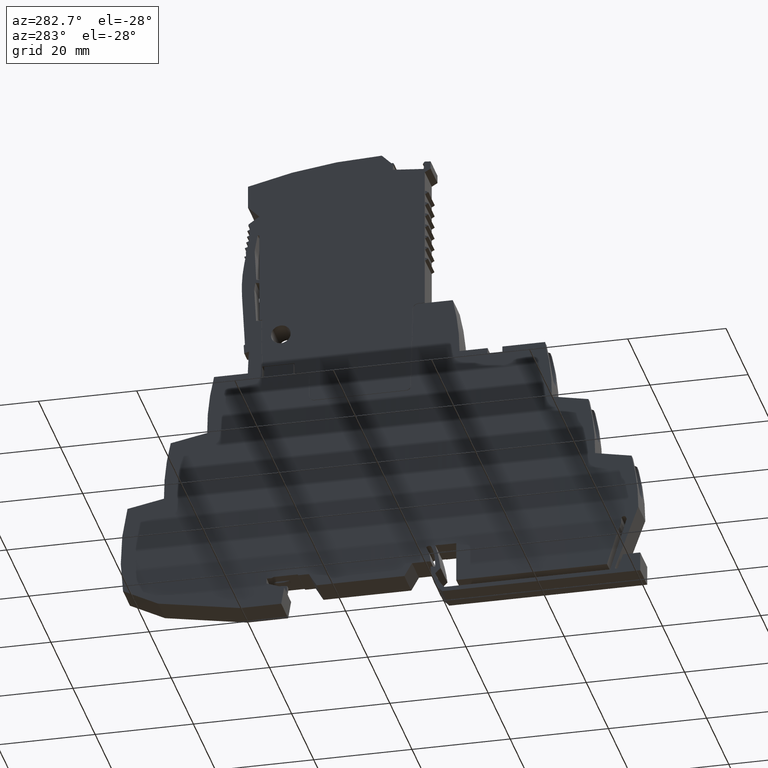
[diagram: clean part render]
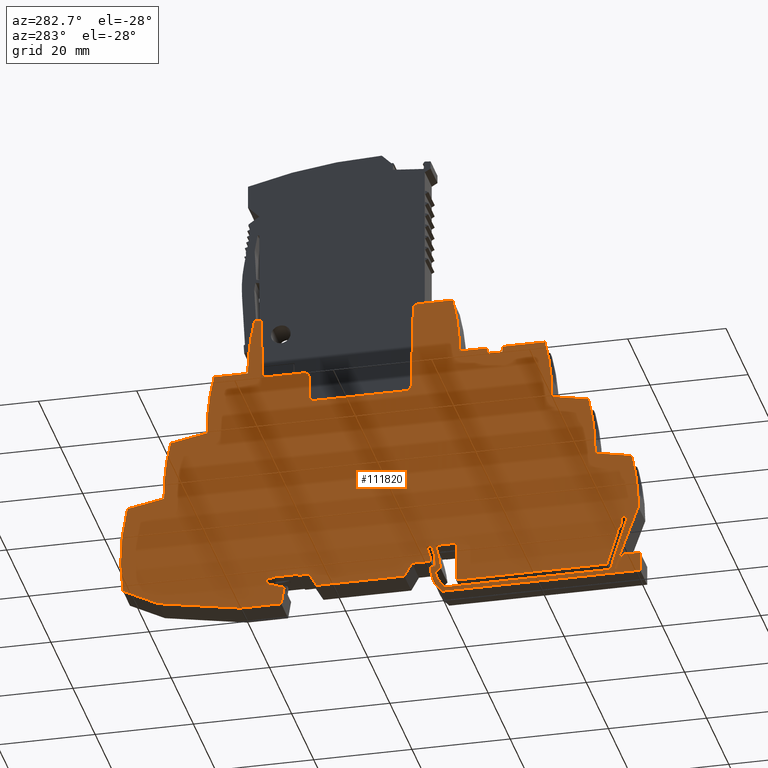
[diagram: same view with one face highlighted and labeled with its STEP entity id]
A machine part, auxiliary view. The second image highlights one B-rep face of the part: STEP entity #111820.
In plain terms, the highlighted planar face has unit normal (-1, 0, 0).
Its self-contained STEP definition (entity closure, byte-faithful):
#15380=CARTESIAN_POINT('',(0.,58.2109707944721,6.42371764497642E-8));
#15390=DIRECTION('',(0.999999999999991,1.31857899599019E-7,
1.49766621791332E-16));
#15400=VECTOR('',#15390,1.);
#15410=LINE('',#15380,#15400);
#15420=CARTESIAN_POINT('',(-37.9106962853079,58.2109657956473,
6.42371707720073E-8));
#15430=VERTEX_POINT('',#15420);
#15440=CARTESIAN_POINT('',(-30.8831240063783,58.2109667222882,
6.42371718245031E-8));
#15450=VERTEX_POINT('',#15440);
#15460=EDGE_CURVE('',#15430,#15450,#15410,.T.);
#16520=CARTESIAN_POINT('',(-9.72105660347197,38.9430393421183,
4.29745596128723E-8));
#16530=VERTEX_POINT('',#16520);
#16610=CARTESIAN_POINT('',(-28.4302616897223,38.9430393421183,
4.29745595332025E-8));
#16620=VERTEX_POINT('',#16610);
#16650=CARTESIAN_POINT('',(-28.4302616897223,38.9430393421183,
4.29745595332025E-8));
#16660=DIRECTION('',(1.,3.79782429282532E-16,4.25831819842337E-18));
#16670=VECTOR('',#16660,1.);
#16680=LINE('',#16650,#16670);
#16690=EDGE_CURVE('',#16620,#16530,#16680,.T.);
#16900=CARTESIAN_POINT('',(-8.72120890831556,39.9255869356814,
4.40588240434394E-8));
#16910=VERTEX_POINT('',#16900);
#16960=CARTESIAN_POINT('',(-9.72105660347197,39.9430393421184,
4.40780831980623E-8));
#16970=DIRECTION('',(-4.25831775426141E-18,-1.25334406386425E-20,1.));
#16980=DIRECTION('',(-6.48370246381091E-13,-1.,-1.25334406414035E-20));
#16990=AXIS2_PLACEMENT_3D('',#16960,#16970,#16980);
#17000=CIRCLE('',#16990,1.);
#17010=EDGE_CURVE('',#16530,#16910,#17000,.T.);
#17220=CARTESIAN_POINT('',(-8.64282693639703,44.4160870994388,
4.89949377584163E-8));
#17230=VERTEX_POINT('',#17220);
#17280=CARTESIAN_POINT('',(-8.72120890831555,39.9255869356813,
4.40588240601984E-8));
#17290=DIRECTION('',(0.0174524064372863,0.999847695156391,
1.10335551327726E-9));
#17300=VECTOR('',#17290,1.);
#17310=LINE('',#17280,#17300);
#17320=EDGE_CURVE('',#16910,#17230,#17310,.T.);
#17530=CARTESIAN_POINT('',(-7.64297914195613,45.3986346930014,
4.89949377626863E-8));
#17540=VERTEX_POINT('',#17530);
#17590=CARTESIAN_POINT('',(-7.64297924124064,44.3986346930014,
4.89949377626737E-8));
#17600=DIRECTION('',(4.25831958431897E-18,1.25329951073237E-20,-1.));
#17610=DIRECTION('',(-0.999847695156386,0.0174524064375632,
-4.25745229069613E-18));
#17620=AXIS2_PLACEMENT_3D('',#17590,#17600,#17610);
#17630=CIRCLE('',#17620,1.);
#17640=EDGE_CURVE('',#17230,#17540,#17630,.T.);
#18420=CARTESIAN_POINT('',(-7.64297914195562,45.3986346930015,
5.0098461347864E-8));
#18430=DIRECTION('',(0.999999999999995,-9.92840012002268E-8,
-1.05303920145555E-16));
#18440=VECTOR('',#18430,1.);
#18450=LINE('',#18420,#18440);
#18460=CARTESIAN_POINT('',(0.90275153054791,45.398633844547,
5.00984604479648E-8));
#18470=VERTEX_POINT('',#18460);
#18480=EDGE_CURVE('',#17540,#18470,#18450,.T.);
#18770=CARTESIAN_POINT('',(1.01456435035116,58.2109681582335,
6.42371735564165E-8));
#18780=VERTEX_POINT('',#18770);
#19070=CARTESIAN_POINT('',(0.902751530547924,45.3986338445472,
5.0098460447965E-8));
#19080=DIRECTION('',(0.00872663477859456,0.999961922197761,
1.10348156547432E-9));
#19090=VECTOR('',#19080,1.);
#19100=LINE('',#19070,#19090);
#19110=EDGE_CURVE('',#18470,#18780,#19100,.T.);
#19430=CARTESIAN_POINT('',(1.01456435035116,58.2109681582333,
6.42371735449329E-8));
#19440=DIRECTION('',(0.999999999999999,4.96421983912843E-8,
5.9039659598292E-17));
#19450=VECTOR('',#19440,1.);
#19460=LINE('',#19430,#19450);
#19470=CARTESIAN_POINT('',(2.45069827905098,58.2109682295262,
6.42371736297218E-8));
#19480=VERTEX_POINT('',#19470);
#19490=EDGE_CURVE('',#18780,#19480,#19460,.T.);
#37660=CARTESIAN_POINT('',(-29.8834665417039,57.2371436681465,
6.3133648240867E-8));
#37670=VERTEX_POINT('',#37660);
#37720=CARTESIAN_POINT('',(-30.8831238666795,57.2109667198385,
6.31336482366096E-8));
#37730=DIRECTION('',(4.25831775426126E-18,1.25340689118339E-20,-1.));
#37740=DIRECTION('',(-1.47539584105514E-7,0.999999999999989,
1.25334406414033E-20));
#37750=AXIS2_PLACEMENT_3D('',#37720,#37730,#37740);
#37760=CIRCLE('',#37750,1.00000000000001);
#37770=EDGE_CURVE('',#15450,#37670,#37760,.T.);
#38630=CARTESIAN_POINT('',(-29.4299190146979,39.9168623938107,
4.40780831141354E-8));
#38640=VERTEX_POINT('',#38630);
#38690=CARTESIAN_POINT('',(-29.883466541704,57.2371436681467,
6.3162535120713E-8));
#38700=DIRECTION('',(0.0261769483078745,-0.999657324975557,
-1.103145435107E-9));
#38710=VECTOR('',#38700,1.);
#38720=LINE('',#38690,#38710);
#38730=EDGE_CURVE('',#37670,#38640,#38720,.T.);
#39170=CARTESIAN_POINT('',(-28.4302616897223,39.9430393421183,
4.40780831183924E-8));
#39180=DIRECTION('',(-4.25831873530303E-18,-1.25330527405761E-20,1.));
#39190=DIRECTION('',(-0.999657324975572,-0.0261769483073024,
-4.25718759290011E-18));
#39200=AXIS2_PLACEMENT_3D('',#39170,#39180,#39190);
#39210=CIRCLE('',#39200,1.);
#39220=EDGE_CURVE('',#38640,#16620,#39210,.T.);
#45720=CARTESIAN_POINT('',(3.82923846379281,46.6000000064736,
5.14241963545619E-8));
#45730=VERTEX_POINT('',#45720);
#45760=CARTESIAN_POINT('',(0.,46.6000000064736,5.14241963382558E-8));
#45770=DIRECTION('',(1.,-1.11022302462515E-16,4.25831734740234E-18));
#45780=VECTOR('',#45770,1.);
#45790=LINE('',#45760,#45780);
#45800=CARTESIAN_POINT('',(10.6909786444634,46.6000000064736,
5.14241963837814E-8));
#45810=VERTEX_POINT('',#45800);
#45820=EDGE_CURVE('',#45730,#45810,#45790,.T.);
#46880=CARTESIAN_POINT('',(-46.1707374788646,46.5509517270129,
5.13700699755759E-8));
#46890=DIRECTION('',(1.26133036133013E-9,-1.10352358517744E-9,-1.));
#46900=DIRECTION('',(0.972428715158313,0.233200330050265,
9.69211798376798E-10));
#46910=AXIS2_PLACEMENT_3D('',#46880,#46890,#46900);
#46920=CIRCLE('',#46910,50.);
#46930=EDGE_CURVE('',#19480,#45730,#46920,.T.);
#74370=CARTESIAN_POINT('',(12.092036618478,34.1702546828145,
3.77076791214485E-8));
#74380=VERTEX_POINT('',#74370);
#75410=CARTESIAN_POINT('',(-37.9036280791465,34.828670541299,
3.84342564829879E-8));
#75420=DIRECTION('',(4.25831752161686E-18,1.10352358519E-9,-1.));
#75430=DIRECTION('',(1.,0.,4.25831752161686E-18));
#75440=AXIS2_PLACEMENT_3D('',#75410,#75420,#75430);
#75450=CIRCLE('',#75440,50.);
#75460=EDGE_CURVE('',#45810,#74380,#75450,.T.);
#84090=CARTESIAN_POINT('',(0.,36.5207084988188,4.03014604375535E-8));
#84100=DIRECTION('',(0.981627183447664,-0.190808995376544,
-2.10562234315148E-10));
#84110=VECTOR('',#84100,1.);
#84120=LINE('',#84090,#84110);
#84130=CARTESIAN_POINT('',(19.5275810209679,32.7249312632513,
3.6112730817132E-8));
#84140=VERTEX_POINT('',#84130);
#84150=EDGE_CURVE('',#74380,#84140,#84120,.T.);
#85520=CARTESIAN_POINT('',(20.8928727810394,20.4195573763437,
2.25334605141622E-8));
#85530=VERTEX_POINT('',#85520);
#86560=CARTESIAN_POINT('',(-29.1024839507505,21.100956863484,
2.32854007062618E-8));
#86570=DIRECTION('',(4.25831752161686E-18,1.10352358519E-9,-1.));
#86580=DIRECTION('',(1.,0.,4.25831752161686E-18));
#86590=AXIS2_PLACEMENT_3D('',#86560,#86570,#86580);
#86600=CIRCLE('',#86590,50.);
#86610=EDGE_CURVE('',#84140,#85530,#86600,.T.);
#95550=CARTESIAN_POINT('',(0.,24.4807204462972,2.701504965619E-8));
#95560=DIRECTION('',(0.981627183447664,-0.190808995376544,
-2.10562234315148E-10));
#95570=VECTOR('',#95560,1.);
#95580=LINE('',#95550,#95570);
#95590=CARTESIAN_POINT('',(28.3248298485418,18.9749312640643,
2.09392812177507E-8));
#95600=VERTEX_POINT('',#95590);
#95610=EDGE_CURVE('',#85530,#95600,#95580,.T.);
#97020=CARTESIAN_POINT('',(29.2351400995933,0.586991843612006,
6.4775697356505E-10));
#97030=VERTEX_POINT('',#97020);
#98060=CARTESIAN_POINT('',(-20.3052351230874,7.3509568639236,
8.11195144784589E-9));
#98070=DIRECTION('',(4.25831752161686E-18,1.10352358519E-9,-1.));
#98080=DIRECTION('',(1.,0.,4.25831752161686E-18));
#98090=AXIS2_PLACEMENT_3D('',#98060,#98070,#98080);
#98100=CIRCLE('',#98090,50.);
#98110=EDGE_CURVE('',#95600,#97030,#98100,.T.);
#105320=CARTESIAN_POINT('',(22.0928458790932,-3.05218871222587,
-3.36816469060971E-9));
#105330=VERTEX_POINT('',#105320);
#105380=CARTESIAN_POINT('',(0.,-14.3090555765944,-1.57903830493084E-8));
#105390=DIRECTION('',(-0.891006530106836,-0.453990488123899,
-5.00989222329551E-10));
#105400=VECTOR('',#105390,1.);
#105410=LINE('',#105380,#105400);
#105420=EDGE_CURVE('',#97030,#105330,#105410,.T.);
#105940=CARTESIAN_POINT('',(5.37497732927698,-5.99999999749596,
-6.62114422423036E-9));
#105950=VERTEX_POINT('',#105940);
#106000=CARTESIAN_POINT('',(0.,-6.94775352134381,-7.66701261363176E-9));
#106010=DIRECTION('',(-0.984807753012208,-0.17364817766693,
-1.91624868750573E-10));
#106020=VECTOR('',#106010,1.);
#106030=LINE('',#106000,#106020);
#106040=EDGE_CURVE('',#105330,#105950,#106030,.T.);
#106460=CARTESIAN_POINT('',(-2.98117450052271,-5.99999999749596,
-6.62114425981351E-9));
#106470=VERTEX_POINT('',#106460);
#106520=CARTESIAN_POINT('',(0.,-5.99999999749596,-6.62114424711872E-9));
#106530=DIRECTION('',(-1.,-2.77555756156289E-16,-4.25831777620737E-18));
#106540=VECTOR('',#106530,1.);
#106550=LINE('',#106520,#106540);
#106560=EDGE_CURVE('',#105950,#106470,#106550,.T.);
#107150=CARTESIAN_POINT('',(-55.9378215936621,-6.54999889871898,
-7.22808124464791E-9));
#107160=DIRECTION('',(4.25831746991807E-18,1.10352358519E-9,-1.));
#107170=DIRECTION('',(0.207911690818067,-0.97814760073374,
-1.07940894632134E-9));
#107180=AXIS2_PLACEMENT_3D('',#107150,#107160,#107170);
#107190=PLANE('',#107180);
#107200=CARTESIAN_POINT('',(-38.6044126144672,0.,-2.90313183219228E-15))
;
#107210=DIRECTION('',(-5.07417828893286E-8,0.999999999999999,
1.10352358519E-9));
#107220=VECTOR('',#107210,1.);
#107230=LINE('',#107200,#107220);
#107240=CARTESIAN_POINT('',(-38.6044123696365,-4.8250318259205,
-5.32453932232747E-9));
#107250=VERTEX_POINT('',#107240);
#107260=CARTESIAN_POINT('',(-38.6044127892712,3.44497200500275,
3.80160495470799E-9));
#107270=VERTEX_POINT('',#107260);
#107280=EDGE_CURVE('',#107250,#107270,#107230,.T.);
#107290=ORIENTED_EDGE('',*,*,#107280,.F.);
#107300=CARTESIAN_POINT('',(0.,3.44497588026097,3.80160939553667E-9));
#107310=DIRECTION('',(0.999999999999995,1.00383815346271E-7,
1.15034214460182E-16));
#107320=VECTOR('',#107310,1.);
#107330=LINE('',#107300,#107320);
#107340=CARTESIAN_POINT('',(-35.1751514716323,3.44497234924504,
3.80160535704872E-9));
#107350=VERTEX_POINT('',#107340);
#107360=EDGE_CURVE('',#107270,#107350,#107330,.T.);
#107370=ORIENTED_EDGE('',*,*,#107360,.F.);
#107380=CARTESIAN_POINT('',(-35.0441482321315,3.29384938196245,
3.63483759108797E-9));
#107390=DIRECTION('',(0.,-1.10352363349846E-9,1.));
#107400=DIRECTION('',(-9.92840029509786E-8,-0.999999999999995,
-1.10352363349845E-9));
#107410=AXIS2_PLACEMENT_3D('',#107380,#107390,#107400);
#107420=CIRCLE('',#107410,0.2);
#107430=CARTESIAN_POINT('',(-35.0441482522088,3.49384938196244,
3.85554230812635E-9));
#107440=VERTEX_POINT('',#107430);
#107450=EDGE_CURVE('',#107440,#107350,#107420,.T.);
#107460=ORIENTED_EDGE('',*,*,#107450,.T.);
#107470=CARTESIAN_POINT('',(0.,3.49385289982775,3.85554633940241E-9));
#107480=DIRECTION('',(0.999999999999995,1.00383815512805E-7,
1.15034214460182E-16));
#107490=VECTOR('',#107480,1.);
#107500=LINE('',#107470,#107490);
#107510=CARTESIAN_POINT('',(-34.3420131750122,3.49384945244544,
3.8555423888959E-9));
#107520=VERTEX_POINT('',#107510);
#107530=EDGE_CURVE('',#107440,#107520,#107500,.T.);
#107540=ORIENTED_EDGE('',*,*,#107530,.F.);
#107550=CARTESIAN_POINT('',(-5.80807240252724,-5.09999857927684,
-5.62797148014208E-9));
#107560=DIRECTION('',(0.,-1.10352363349846E-9,1.));
#107570=DIRECTION('',(-9.92840029509786E-8,-0.999999999999995,
-1.10352363349845E-9));
#107580=AXIS2_PLACEMENT_3D('',#107550,#107560,#107570);
#107590=CIRCLE('',#107580,29.8);
#107600=CARTESIAN_POINT('',(-35.4168709011156,-1.7296793851928,
-1.90874406389204E-9));
#107610=VERTEX_POINT('',#107600);
#107620=EDGE_CURVE('',#107520,#107610,#107590,.T.);
#107630=ORIENTED_EDGE('',*,*,#107620,.F.);
#107640=CARTESIAN_POINT('',(0.,-37.1465466920785,-4.09920931218121E-8));
#107650=DIRECTION('',(0.707106817066403,-0.707106745306691,
-7.80308984094091E-10));
#107660=VECTOR('',#107650,1.);
#107670=LINE('',#107640,#107660);
#107680=CARTESIAN_POINT('',(-34.3522554113693,-2.79429476689808,
-3.08357226693668E-9));
#107690=VERTEX_POINT('',#107680);
#107700=EDGE_CURVE('',#107610,#107690,#107670,.T.);
#107710=ORIENTED_EDGE('',*,*,#107700,.F.);
#107720=CARTESIAN_POINT('',(-42.5080726410136,-0.400000441500282,
-4.4141284103683E-10));
#107730=DIRECTION('',(0.,-1.10352363349846E-9,1.));
#107740=DIRECTION('',(-9.92840029509786E-8,-0.999999999999995,
-1.10352363349845E-9));
#107750=AXIS2_PLACEMENT_3D('',#107720,#107730,#107740);
#107760=CIRCLE('',#107750,8.5);
#107770=CARTESIAN_POINT('',(-36.2025220522756,-6.1000032285931,
-6.73150062760081E-9));
#107780=VERTEX_POINT('',#107770);
#107790=EDGE_CURVE('',#107780,#107690,#107760,.T.);
#107800=ORIENTED_EDGE('',*,*,#107790,.T.);
#107810=CARTESIAN_POINT('',(0.,-6.10000139161245,-6.73149814407815E-9));
#107820=DIRECTION('',(-0.999999999999999,-5.07417829448398E-8,
-6.02530765892814E-17));
#107830=VECTOR('',#107820,1.);
#107840=LINE('',#107810,#107830);
#107850=CARTESIAN_POINT('',(-69.9597117409604,-6.10000494149282,
-6.73150244031202E-9));
#107860=VERTEX_POINT('',#107850);
#107870=EDGE_CURVE('',#107780,#107860,#107840,.T.);
#107880=ORIENTED_EDGE('',*,*,#107870,.F.);
#107890=CARTESIAN_POINT('',(-71.8246714117973,0.,-3.04459424058415E-15))
;
#107900=DIRECTION('',(-0.292371848547817,0.956304711991284,
1.05530481575578E-9));
#107910=VECTOR('',#107900,1.);
#107920=LINE('',#107890,#107910);
#107930=CARTESIAN_POINT('',(-73.2832765906462,4.77088000228553,
5.2647756171371E-9));
#107940=VERTEX_POINT('',#107930);
#107950=EDGE_CURVE('',#107860,#107940,#107920,.T.);
#107960=ORIENTED_EDGE('',*,*,#107950,.F.);
#107970=CARTESIAN_POINT('',(-72.8529394702501,4.90244733413206,
5.40996320939364E-9));
#107980=DIRECTION('',(0.,-1.10352363349846E-9,1.));
#107990=DIRECTION('',(-9.92840029509786E-8,-0.999999999999995,
-1.10352363349845E-9));
#108000=AXIS2_PLACEMENT_3D('',#107970,#107980,#107990);
#108010=CIRCLE('',#108000,0.45);
#108020=CARTESIAN_POINT('',(-73.2033943907531,5.18472618331351,
5.72146458401679E-9));
#108030=VERTEX_POINT('',#108020);
#108040=EDGE_CURVE('',#108030,#107940,#108010,.T.);
#108050=ORIENTED_EDGE('',*,*,#108040,.T.);
#108060=CARTESIAN_POINT('',(-72.7212094578097,5.05244734735562,
5.5754917623256E-9));
#108070=DIRECTION('',(0.,-1.10352363349846E-9,1.));
#108080=DIRECTION('',(-9.92840029509786E-8,-0.999999999999995,
-1.10352363349845E-9));
#108090=AXIS2_PLACEMENT_3D('',#108060,#108070,#108080);
#108100=CIRCLE('',#108090,0.5);
#108110=CARTESIAN_POINT('',(-72.2212094578097,5.05244739754763,
5.57549181771366E-9));
#108120=VERTEX_POINT('',#108110);
#108130=EDGE_CURVE('',#108120,#108030,#108100,.T.);
#108140=ORIENTED_EDGE('',*,*,#108130,.T.);
#108150=CARTESIAN_POINT('',(-72.221208950626,0.,-3.04628282331323E-15));
#108160=DIRECTION('',(1.00383786647006E-7,-0.999999999999995,
-1.10352358518999E-9));
#108170=VECTOR('',#108160,1.);
#108180=LINE('',#108150,#108170);
#108190=CARTESIAN_POINT('',(-72.2212093726668,4.20427319590983,
4.63951163979971E-9));
#108200=VERTEX_POINT('',#108190);
#108210=EDGE_CURVE('',#108120,#108200,#108180,.T.);
#108220=ORIENTED_EDGE('',*,*,#108210,.F.);
#108230=CARTESIAN_POINT('',(-70.9358333719549,0.,-3.04080928603116E-15))
;
#108240=DIRECTION('',(0.292371848563715,-0.956304711986423,
-1.05530481575578E-9));
#108250=VECTOR('',#108240,1.);
#108260=LINE('',#108230,#108250);
#108270=CARTESIAN_POINT('',(-71.9172872789946,3.21018935479002,
3.54251666356495E-9));
#108280=VERTEX_POINT('',#108270);
#108290=EDGE_CURVE('',#108200,#108280,#108260,.T.);
#108300=ORIENTED_EDGE('',*,*,#108290,.F.);
#108310=CARTESIAN_POINT('',(-70.063883161189,0.,-3.03709624521576E-15));
#108320=DIRECTION('',(0.500000086934894,-0.866025353592549,
-9.55679424485822E-10));
#108330=VECTOR('',#108320,1.);
#108340=LINE('',#108310,#108330);
#108350=CARTESIAN_POINT('',(-71.5838812889857,2.6327133744209,
2.9052583692542E-9));
#108360=VERTEX_POINT('',#108350);
#108370=EDGE_CURVE('',#108280,#108360,#108340,.T.);
#108380=ORIENTED_EDGE('',*,*,#108370,.F.);
#108390=CARTESIAN_POINT('',(-70.7789796027637,0.,-3.04014135288559E-15))
;
#108400=DIRECTION('',(0.292371848286536,-0.956304712071166,
-1.05530484351135E-9));
#108410=VECTOR('',#108400,1.);
#108420=LINE('',#108390,#108410);
#108430=CARTESIAN_POINT('',(-69.3038180662588,-4.82503338366295,
-5.32454137568451E-9));
#108440=VERTEX_POINT('',#108430);
#108450=EDGE_CURVE('',#108360,#108440,#108420,.T.);
#108460=ORIENTED_EDGE('',*,*,#108450,.F.);
#108470=CARTESIAN_POINT('',(0.,-4.82502986706378,-5.32453699629304E-9));
#108480=DIRECTION('',(0.999999999999999,5.07417829170842E-8,
6.02530765892814E-17));
#108490=VECTOR('',#108480,1.);
#108500=LINE('',#108470,#108490);
#108510=EDGE_CURVE('',#108440,#107250,#108500,.T.);
#108520=ORIENTED_EDGE('',*,*,#108510,.F.);
#108530=EDGE_LOOP('',(#108520,#108460,#108380,#108300,#108220,#108140,
#108050,#107960,#107880,#107800,#107710,#107630,#107540,#107460,#107370,
#107290));
#108540=FACE_BOUND('',#108530,.T.);
#108550=CARTESIAN_POINT('',(-40.4080782294094,-1.75646255941947,
-1.93830077163499E-9));
#108560=DIRECTION('',(4.25831752161686E-18,1.10352358519E-9,-1.));
#108570=DIRECTION('',(1.,0.,4.25831752161686E-18));
#108580=AXIS2_PLACEMENT_3D('',#108550,#108560,#108570);
#108590=CIRCLE('',#108580,7.);
#108600=CARTESIAN_POINT('',(-33.4080782294094,-1.75646255941947,
-1.93830074182677E-9));
#108610=VERTEX_POINT('',#108600);
#108620=CARTESIAN_POINT('',(-35.7706957610773,-6.99999990003275,
-7.72466787707875E-9));
#108630=VERTEX_POINT('',#108620);
#108640=EDGE_CURVE('',#108610,#108630,#108590,.T.);
#108650=ORIENTED_EDGE('',*,*,#108640,.T.);
#108660=CARTESIAN_POINT('',(-33.408078142215,0.,-2.88100419032955E-15));
#108670=DIRECTION('',(-4.96420310414081E-8,-0.999999999999999,
-1.10352358519E-9));
#108680=VECTOR('',#108670,1.);
#108690=LINE('',#108660,#108680);
#108700=CARTESIAN_POINT('',(-33.4080782017853,-1.19999691028247,
-1.32422788924952E-9));
#108710=VERTEX_POINT('',#108700);
#108720=EDGE_CURVE('',#108710,#108610,#108690,.T.);
#108730=ORIENTED_EDGE('',*,*,#108720,.T.);
#108740=CARTESIAN_POINT('',(0.,1.72282953142238,1.90118028244445E-9));
#108750=DIRECTION('',(0.996194702418332,0.0871556932945337,
9.61783708230968E-11));
#108760=VECTOR('',#108750,1.);
#108770=LINE('',#108740,#108760);
#108780=CARTESIAN_POINT('',(-34.3080782056942,-1.27873666277798,
-1.41111907016686E-9));
#108790=VERTEX_POINT('',#108780);
#108800=EDGE_CURVE('',#108790,#108710,#108770,.T.);
#108810=ORIENTED_EDGE('',*,*,#108800,.T.);
#108820=CARTESIAN_POINT('',(-34.3080781422151,0.,-2.88483667605248E-15))
;
#108830=DIRECTION('',(-4.96420310414081E-8,-0.999999999999999,
-1.10352358519E-9));
#108840=VECTOR('',#108830,1.);
#108850=LINE('',#108820,#108840);
#108860=CARTESIAN_POINT('',(-34.3080781521432,-0.199997071626795,
-2.20704370345779E-10));
#108870=VERTEX_POINT('',#108860);
#108880=EDGE_CURVE('',#108870,#108790,#108850,.T.);
#108890=ORIENTED_EDGE('',*,*,#108880,.T.);
#108900=CARTESIAN_POINT('',(-26.0080781521432,-0.199997277639503,
-2.20704562341625E-10));
#108910=DIRECTION('',(-4.25831752161686E-18,-1.10352358519E-9,1.));
#108920=DIRECTION('',(1.,0.,4.25831752161686E-18));
#108930=AXIS2_PLACEMENT_3D('',#108900,#108910,#108920);
#108940=CIRCLE('',#108930,8.3);
#108950=CARTESIAN_POINT('',(-33.5718919075351,3.21741716514383,
3.5504928434296E-9));
#108960=VERTEX_POINT('',#108950);
#108970=EDGE_CURVE('',#108960,#108870,#108940,.T.);
#108980=ORIENTED_EDGE('',*,*,#108970,.T.);
#108990=CARTESIAN_POINT('',(-33.0391728770314,2.8449786674839,
3.13949817949763E-9));
#109000=DIRECTION('',(-4.25831752161686E-18,-1.10352358519E-9,1.));
#109010=DIRECTION('',(1.,0.,4.25831752161686E-18));
#109020=AXIS2_PLACEMENT_3D('',#108990,#109000,#109010);
#109030=CIRCLE('',#109020,0.65);
#109040=CARTESIAN_POINT('',(-32.507005311546,3.21820471459919,
3.55136192736272E-9));
#109050=VERTEX_POINT('',#109040);
#109060=EDGE_CURVE('',#109050,#108960,#109030,.T.);
#109070=ORIENTED_EDGE('',*,*,#109060,.T.);
#109080=CARTESIAN_POINT('',(-26.1107379947127,-0.299999999684892,
-3.3105992513907E-10));
#109090=DIRECTION('',(4.25831752161686E-18,1.10352358519E-9,-1.));
#109100=DIRECTION('',(1.,0.,4.25831752161686E-18));
#109110=AXIS2_PLACEMENT_3D('',#109080,#109090,#109100);
#109120=CIRCLE('',#109110,7.3);
#109130=CARTESIAN_POINT('',(-33.4045710062369,3.15006687401365E-10,
-2.88064163852211E-15));
#109140=VERTEX_POINT('',#109130);
#109150=EDGE_CURVE('',#109140,#109050,#109120,.T.);
#109160=ORIENTED_EDGE('',*,*,#109150,.T.);
#109170=CARTESIAN_POINT('',(0.,3.15006687401365E-10,
-2.73839437023113E-15));
#109180=DIRECTION('',(-1.,0.,-4.25831746991807E-18));
#109190=VECTOR('',#109180,1.);
#109200=LINE('',#109170,#109190);
#109210=CARTESIAN_POINT('',(-29.6053705632703,3.15006687401365E-10,
-2.8644634369041E-15));
#109220=VERTEX_POINT('',#109210);
#109230=EDGE_CURVE('',#109220,#109140,#109200,.T.);
#109240=ORIENTED_EDGE('',*,*,#109230,.T.);
#109250=CARTESIAN_POINT('',(-29.6053705630884,0.,-2.86481105421237E-15))
;
#109260=DIRECTION('',(-0.499999999999999,0.866025403784439,
9.55679479996974E-10));
#109270=VECTOR('',#109260,1.);
#109280=LINE('',#109250,#109270);
#109290=CARTESIAN_POINT('',(-28.0461062848083,-2.70072495240839,
-2.98031654026501E-9));
#109300=VERTEX_POINT('',#109290);
#109310=EDGE_CURVE('',#109300,#109220,#109280,.T.);
#109320=ORIENTED_EDGE('',*,*,#109310,.T.);
#109330=CARTESIAN_POINT('',(0.,-2.70072495240839,-2.98031642083578E-9));
#109340=DIRECTION('',(-1.,-8.32667268468868E-17,-4.25831756180487E-18));
#109350=VECTOR('',#109340,1.);
#109360=LINE('',#109330,#109350);
#109370=CARTESIAN_POINT('',(-10.1672507824607,-2.70072495240839,
-2.98031646413117E-9));
#109380=VERTEX_POINT('',#109370);
#109390=EDGE_CURVE('',#109380,#109300,#109360,.T.);
#109400=ORIENTED_EDGE('',*,*,#109390,.T.);
#109410=CARTESIAN_POINT('',(-8.60798650418062,0.,-2.77539752685174E-15))
;
#109420=DIRECTION('',(-0.5,-0.866025403784439,-9.55679452241398E-10));
#109430=VECTOR('',#109420,1.);
#109440=LINE('',#109410,#109430);
#109450=CARTESIAN_POINT('',(-8.60798650399875,3.15006687401365E-10,
-2.77504990954193E-15));
#109460=VERTEX_POINT('',#109450);
#109470=EDGE_CURVE('',#109460,#109380,#109440,.T.);
#109480=ORIENTED_EDGE('',*,*,#109470,.T.);
#109490=CARTESIAN_POINT('',(0.,3.15006687401365E-10,
-2.73839437023113E-15));
#109500=DIRECTION('',(-1.,0.,-4.25831746991807E-18));
#109510=VECTOR('',#109500,1.);
#109520=LINE('',#109490,#109510);
#109530=CARTESIAN_POINT('',(-6.49999999977461,3.15006687401365E-10,
-2.76607343378464E-15));
#109540=VERTEX_POINT('',#109530);
#109550=EDGE_CURVE('',#109540,#109460,#109520,.T.);
#109560=ORIENTED_EDGE('',*,*,#109550,.T.);
#109570=CARTESIAN_POINT('',(-6.29999999784786,0.200000002241693,
2.20701953942378E-10));
#109580=DIRECTION('',(-0.707106781186544,-0.707106781186551,
-7.80309013298227E-10));
#109590=VECTOR('',#109580,1.);
#109600=LINE('',#109570,#109590);
#109610=CARTESIAN_POINT('',(-6.2999999978479,0.200000002241696,
2.20701953942377E-10));
#109620=VERTEX_POINT('',#109610);
#109630=EDGE_CURVE('',#109620,#109540,#109600,.T.);
#109640=ORIENTED_EDGE('',*,*,#109630,.T.);
#109650=CARTESIAN_POINT('',(-1.49999999784786,0.200000002241694,
2.20701974382303E-10));
#109660=DIRECTION('',(-1.,-1.8503717077086E-16,-4.25831769394616E-18));
#109670=VECTOR('',#109660,1.);
#109680=LINE('',#109650,#109670);
#109690=CARTESIAN_POINT('',(-1.49999999784786,0.200000002241696,
2.20701974382301E-10));
#109700=VERTEX_POINT('',#109690);
#109710=EDGE_CURVE('',#109700,#109620,#109680,.T.);
#109720=ORIENTED_EDGE('',*,*,#109710,.T.);
#109730=CARTESIAN_POINT('',(-0.999999997847844,2.24169482976322E-9,
-2.74052654037625E-15));
#109740=DIRECTION('',(-0.928476690885263,0.371390676354093,
4.09838366722664E-10));
#109750=VECTOR('',#109740,1.);
#109760=LINE('',#109730,#109750);
#109770=CARTESIAN_POINT('',(-0.999999997847866,2.24171259333161E-9,
-2.74052652228297E-15));
#109780=VERTEX_POINT('',#109770);
#109790=EDGE_CURVE('',#109780,#109700,#109760,.T.);
#109800=ORIENTED_EDGE('',*,*,#109790,.T.);
#109810=CARTESIAN_POINT('',(2.14729567460381E-9,2.24169216522796E-9,
-2.73626822450899E-15));
#109820=DIRECTION('',(-1.,2.66453525911333E-15,-4.25831586727633E-18));
#109830=VECTOR('',#109820,1.);
#109840=LINE('',#109810,#109830);
#109850=CARTESIAN_POINT('',(2.14730278003117E-9,2.24171259333161E-9,
-2.73626820481307E-15));
#109860=VERTEX_POINT('',#109850);
#109870=EDGE_CURVE('',#109860,#109780,#109840,.T.);
#109880=ORIENTED_EDGE('',*,*,#109870,.T.);
#109890=CARTESIAN_POINT('',(2.14729567460381E-9,-1.10100664143248,
-1.21498953501356E-9));
#109900=DIRECTION('',(0.,1.,1.10352358519E-9));
#109910=VECTOR('',#109900,1.);
#109920=LINE('',#109890,#109910);
#109930=CARTESIAN_POINT('',(2.14730278003117E-9,-1.10100664143248,
-1.21498953501356E-9));
#109940=VERTEX_POINT('',#109930);
#109950=EDGE_CURVE('',#109940,#109860,#109920,.T.);
#109960=ORIENTED_EDGE('',*,*,#109950,.T.);
#109970=CARTESIAN_POINT('',(0.,-1.10100664221403,-1.21498953587602E-9));
#109980=DIRECTION('',(0.939692620785943,0.342020143325573,
3.77427283870801E-10));
#109990=VECTOR('',#109980,1.);
#110000=LINE('',#109970,#109990);
#110010=CARTESIAN_POINT('',(-3.57389051741174,-2.40179641107773,
-2.65044168373917E-9));
#110020=VERTEX_POINT('',#110010);
#110030=EDGE_CURVE('',#110020,#109940,#110000,.T.);
#110040=ORIENTED_EDGE('',*,*,#110030,.T.);
#110050=CARTESIAN_POINT('',(-3.96952772024424,0.,-2.75564549677861E-15))
;
#110060=DIRECTION('',(-0.162535140972111,0.986702755620545,
1.08884976035561E-9));
#110070=VECTOR('',#110060,1.);
#110080=LINE('',#110050,#110070);
#110090=EDGE_CURVE('',#106470,#110020,#110080,.T.);
#110100=ORIENTED_EDGE('',*,*,#110090,.T.);
#110110=ORIENTED_EDGE('',*,*,#106560,.T.);
#110120=ORIENTED_EDGE('',*,*,#106040,.T.);
#110130=ORIENTED_EDGE('',*,*,#105420,.T.);
#110140=ORIENTED_EDGE('',*,*,#98110,.T.);
#110150=ORIENTED_EDGE('',*,*,#95610,.T.);
#110160=ORIENTED_EDGE('',*,*,#86610,.T.);
#110170=ORIENTED_EDGE('',*,*,#84150,.T.);
#110180=ORIENTED_EDGE('',*,*,#75460,.T.);
#110190=ORIENTED_EDGE('',*,*,#45820,.T.);
#110200=ORIENTED_EDGE('',*,*,#46930,.T.);
#110210=ORIENTED_EDGE('',*,*,#19490,.T.);
#110220=ORIENTED_EDGE('',*,*,#19110,.T.);
#110230=ORIENTED_EDGE('',*,*,#18480,.T.);
#110240=ORIENTED_EDGE('',*,*,#17640,.T.);
#110250=ORIENTED_EDGE('',*,*,#17320,.T.);
#110260=ORIENTED_EDGE('',*,*,#17010,.T.);
#110270=ORIENTED_EDGE('',*,*,#16690,.T.);
#110280=ORIENTED_EDGE('',*,*,#39220,.T.);
#110290=ORIENTED_EDGE('',*,*,#38730,.T.);
#110300=ORIENTED_EDGE('',*,*,#37770,.T.);
#110310=ORIENTED_EDGE('',*,*,#15460,.T.);
#110320=CARTESIAN_POINT('',(10.7107400521603,46.5509517098264,
5.13700704317019E-8));
#110330=DIRECTION('',(4.25831752161686E-18,1.10352358519E-9,-1.));
#110340=DIRECTION('',(1.,0.,4.25831752161686E-18));
#110350=AXIS2_PLACEMENT_3D('',#110320,#110330,#110340);
#110360=CIRCLE('',#110350,50.);
#110370=CARTESIAN_POINT('',(-39.2892358904795,46.6000000068789,
5.1424196171397E-8));
#110380=VERTEX_POINT('',#110370);
#110390=EDGE_CURVE('',#110380,#15430,#110360,.T.);
#110400=ORIENTED_EDGE('',*,*,#110390,.T.);
#110410=CARTESIAN_POINT('',(0.,46.6000000068789,5.1424196338703E-8));
#110420=DIRECTION('',(1.,-1.11022302462515E-16,4.25831734740234E-18));
#110430=VECTOR('',#110420,1.);
#110440=LINE('',#110410,#110430);
#110450=CARTESIAN_POINT('',(-44.9888861985022,46.6000000068789,
5.14241961471261E-8));
#110460=VERTEX_POINT('',#110450);
#110470=EDGE_CURVE('',#110460,#110380,#110440,.T.);
#110480=ORIENTED_EDGE('',*,*,#110470,.T.);
#110490=CARTESIAN_POINT('',(-44.9888861985022,0.,-2.93031894759141E-15))
;
#110500=DIRECTION('',(2.80337279178994E-18,-1.,-1.10352358519E-9));
#110510=VECTOR('',#110500,1.);
#110520=LINE('',#110490,#110510);
#110530=CARTESIAN_POINT('',(-44.9888861985022,45.4024524299173,
5.01026741515618E-8));
#110540=VERTEX_POINT('',#110530);
#110550=EDGE_CURVE('',#110460,#110540,#110520,.T.);
#110560=ORIENTED_EDGE('',*,*,#110550,.F.);
#110570=CARTESIAN_POINT('',(0.,45.4024524299173,5.01026743431387E-8));
#110580=DIRECTION('',(-1.,-3.17468797819304E-24,-4.25831746991808E-18));
#110590=VECTOR('',#110580,1.);
#110600=LINE('',#110570,#110590);
#110610=CARTESIAN_POINT('',(-48.0204364667164,45.4024524299173,
5.01026741386525E-8));
#110620=VERTEX_POINT('',#110610);
#110630=EDGE_CURVE('',#110540,#110620,#110600,.T.);
#110640=ORIENTED_EDGE('',*,*,#110630,.F.);
#110650=CARTESIAN_POINT('',(-48.0204364667164,0.,-2.94322825105948E-15))
;
#110660=DIRECTION('',(-2.80337279178994E-18,1.,1.10352358519E-9));
#110670=VECTOR('',#110660,1.);
#110680=LINE('',#110650,#110670);
#110690=CARTESIAN_POINT('',(-48.0204364667164,46.5999999451111,
5.14241960660546E-8));
#110700=VERTEX_POINT('',#110690);
#110710=EDGE_CURVE('',#110620,#110700,#110680,.T.);
#110720=ORIENTED_EDGE('',*,*,#110710,.F.);
#110730=CARTESIAN_POINT('',(0.,46.5999999451111,5.14241962705408E-8));
#110740=DIRECTION('',(1.,-2.77555756156289E-16,4.25831716362875E-18));
#110750=VECTOR('',#110740,1.);
#110760=LINE('',#110730,#110750);
#110770=CARTESIAN_POINT('',(-56.6854746108229,46.5999999451111,
5.14241960291561E-8));
#110780=VERTEX_POINT('',#110770);
#110790=EDGE_CURVE('',#110780,#110700,#110760,.T.);
#110800=ORIENTED_EDGE('',*,*,#110790,.T.);
#110810=CARTESIAN_POINT('',(-8.09086788721554,34.828670479926,
3.84342565422136E-8));
#110820=DIRECTION('',(4.25831752161686E-18,1.10352358519E-9,-1.));
#110830=DIRECTION('',(1.,0.,4.25831752161686E-18));
#110840=AXIS2_PLACEMENT_3D('',#110810,#110820,#110830);
#110850=CIRCLE('',#110840,50.);
#110860=CARTESIAN_POINT('',(-58.0865325848402,34.1702546214415,
3.77076786952447E-8));
#110870=VERTEX_POINT('',#110860);
#110880=EDGE_CURVE('',#110870,#110780,#110850,.T.);
#110890=ORIENTED_EDGE('',*,*,#110880,.T.);
#110900=CARTESIAN_POINT('',(0.,45.4611327820209,5.01674294956724E-8));
#110910=DIRECTION('',(0.981627183447664,0.190808995376545,
2.10562234315148E-10));
#110920=VECTOR('',#110910,1.);
#110930=LINE('',#110900,#110920);
#110940=CARTESIAN_POINT('',(-65.5220769873299,32.7249312018783,
3.61127301555772E-8));
#110950=VERTEX_POINT('',#110940);
#110960=EDGE_CURVE('',#110950,#110870,#110930,.T.);
#110970=ORIENTED_EDGE('',*,*,#110960,.T.);
#110980=CARTESIAN_POINT('',(-16.8920120156115,21.100956802111,
2.32854006905313E-8));
#110990=DIRECTION('',(4.25831752161686E-18,1.10352358519E-9,-1.));
#111000=DIRECTION('',(1.,0.,4.25831752161686E-18));
#111010=AXIS2_PLACEMENT_3D('',#110980,#110990,#111000);
#111020=CIRCLE('',#111010,50.);
#111030=CARTESIAN_POINT('',(-66.8873687474014,20.4195573149708,
2.25334598361527E-8));
#111040=VERTEX_POINT('',#111030);
#111050=EDGE_CURVE('',#111040,#110950,#111020,.T.);
#111060=ORIENTED_EDGE('',*,*,#111050,.T.);
#111070=CARTESIAN_POINT('',(0.,33.4211447294993,3.68810187143089E-8));
#111080=DIRECTION('',(0.981627183447664,0.190808995376545,
2.10562234315148E-10));
#111090=VECTOR('',#111080,1.);
#111100=LINE('',#111070,#111090);
#111110=CARTESIAN_POINT('',(-74.3193258147242,18.9749312027264,
2.09392807915855E-8));
#111120=VERTEX_POINT('',#111110);
#111130=EDGE_CURVE('',#111120,#111040,#111100,.T.);
#111140=ORIENTED_EDGE('',*,*,#111130,.T.);
#111150=CARTESIAN_POINT('',(-25.6892608432084,7.3509568021111,
8.11195135670744E-9));
#111160=DIRECTION('',(4.25831752161686E-18,1.10352358519E-9,-1.));
#111170=DIRECTION('',(1.,0.,4.25831752161686E-18));
#111180=AXIS2_PLACEMENT_3D('',#111150,#111160,#111170);
#111190=CIRCLE('',#111180,50.);
#111200=CARTESIAN_POINT('',(-75.6892600077674,7.34181655580547,
8.10186490216067E-9));
#111210=VERTEX_POINT('',#111200);
#111220=EDGE_CURVE('',#111210,#111120,#111190,.T.);
#111230=ORIENTED_EDGE('',*,*,#111220,.T.);
#111240=CARTESIAN_POINT('',(-70.9642513595698,-5.64003604622177,
-6.22391583925778E-9));
#111250=DIRECTION('',(-0.342020190322416,0.93969260368049,
1.03697294953359E-9));
#111260=VECTOR('',#111250,1.);
#111270=LINE('',#111240,#111260);
#111280=CARTESIAN_POINT('',(-70.9642513420488,-5.64003603984532,
-6.22391601331976E-9));
#111290=VERTEX_POINT('',#111280);
#111300=EDGE_CURVE('',#111290,#111210,#111270,.T.);
#111310=ORIENTED_EDGE('',*,*,#111300,.T.);
#111320=CARTESIAN_POINT('',(-71.2931437708577,-5.7597431128359,
-6.35601541198091E-9));
#111330=DIRECTION('',(-4.25831834879747E-18,-1.10352358519E-9,1.));
#111340=DIRECTION('',(0.80197803572036,-0.59735352198017,
-6.59193696786352E-10));
#111350=AXIS2_PLACEMENT_3D('',#111320,#111330,#111340);
#111360=CIRCLE('',#111350,0.35);
#111370=CARTESIAN_POINT('',(-71.0124514583555,-5.96881684552895,
-6.58673320585612E-9));
#111380=VERTEX_POINT('',#111370);
#111390=EDGE_CURVE('',#111380,#111290,#111360,.T.);
#111400=ORIENTED_EDGE('',*,*,#111390,.T.);
#111410=CARTESIAN_POINT('',(-71.2530448690716,-5.78961078893487,
-6.38897509682019E-9));
#111420=DIRECTION('',(-4.25831638424352E-18,-1.10352358519E-9,1.));
#111430=DIRECTION('',(-0.939692638785394,-0.342020093872486,
-3.77427244198694E-10));
#111440=AXIS2_PLACEMENT_3D('',#111410,#111420,#111430);
#111450=CIRCLE('',#111440,0.3);
#111460=CARTESIAN_POINT('',(-71.534952660739,-5.89221681758466,
-6.50220339800785E-9));
#111470=VERTEX_POINT('',#111460);
#111480=EDGE_CURVE('',#111470,#111380,#111450,.T.);
#111490=ORIENTED_EDGE('',*,*,#111480,.T.);
#111500=CARTESIAN_POINT('',(-73.679543864932,0.,-3.05249287635581E-15));
#111510=DIRECTION('',(0.342020096677421,-0.939692637764481,
-1.03697300746219E-9));
#111520=VECTOR('',#111510,1.);
#111530=LINE('',#111500,#111520);
#111540=CARTESIAN_POINT('',(-72.5840871527449,-3.00974304560474,
-3.32132554908501E-9));
#111550=VERTEX_POINT('',#111540);
#111560=EDGE_CURVE('',#111550,#111470,#111530,.T.);
#111570=ORIENTED_EDGE('',*,*,#111560,.T.);
#111580=CARTESIAN_POINT('',(0.,-3.00974664882624,-3.32132915116831E-9));
#111590=DIRECTION('',(0.999999999999999,-4.96420310414081E-8,
-5.05228352385344E-17));
#111600=VECTOR('',#111590,1.);
#111610=LINE('',#111580,#111600);
#111620=CARTESIAN_POINT('',(-76.0814530764854,-3.00974287198839,
-3.32132530731759E-9));
#111630=VERTEX_POINT('',#111620);
#111640=EDGE_CURVE('',#111630,#111550,#111610,.T.);
#111650=ORIENTED_EDGE('',*,*,#111640,.T.);
#111660=CARTESIAN_POINT('',(-76.081452927076,0.,-3.06272096767629E-15));
#111670=DIRECTION('',(4.96420310691637E-8,0.999999999999999,
1.10352358519E-9));
#111680=VECTOR('',#111670,1.);
#111690=LINE('',#111660,#111680);
#111700=CARTESIAN_POINT('',(-76.0814532745697,-6.99999789892487,
-7.72466584046496E-9));
#111710=VERTEX_POINT('',#111700);
#111720=EDGE_CURVE('',#111710,#111630,#111690,.T.);
#111730=ORIENTED_EDGE('',*,*,#111720,.T.);
#111740=CARTESIAN_POINT('',(0.,-7.00000167576273,-7.72466968431569E-9));
#111750=DIRECTION('',(-0.999999999999999,4.96420310414081E-8,
5.05228352385344E-17));
#111760=VECTOR('',#111750,1.);
#111770=LINE('',#111740,#111760);
#111780=EDGE_CURVE('',#108630,#111710,#111770,.T.);
#111790=ORIENTED_EDGE('',*,*,#111780,.T.);
#111800=EDGE_LOOP('',(#111790,#111730,#111650,#111570,#111490,#111400,
#111310,#111230,#111140,#111060,#110970,#110890,#110800,#110720,#110640,
#110560,#110480,#110400,#110310,#110300,#110290,#110280,#110270,#110260,
#110250,#110240,#110230,#110220,#110210,#110200,#110190,#110180,#110170,
#110160,#110150,#110140,#110130,#110120,#110110,#110100,#110040,#109960,
#109880,#109800,#109720,#109640,#109560,#109480,#109400,#109320,#109240,
#109160,#109070,#108980,#108890,#108810,#108730,#108650));
#111810=FACE_OUTER_BOUND('',#111800,.T.);
#111820=ADVANCED_FACE('',(#108540,#111810),#107190,.T.);